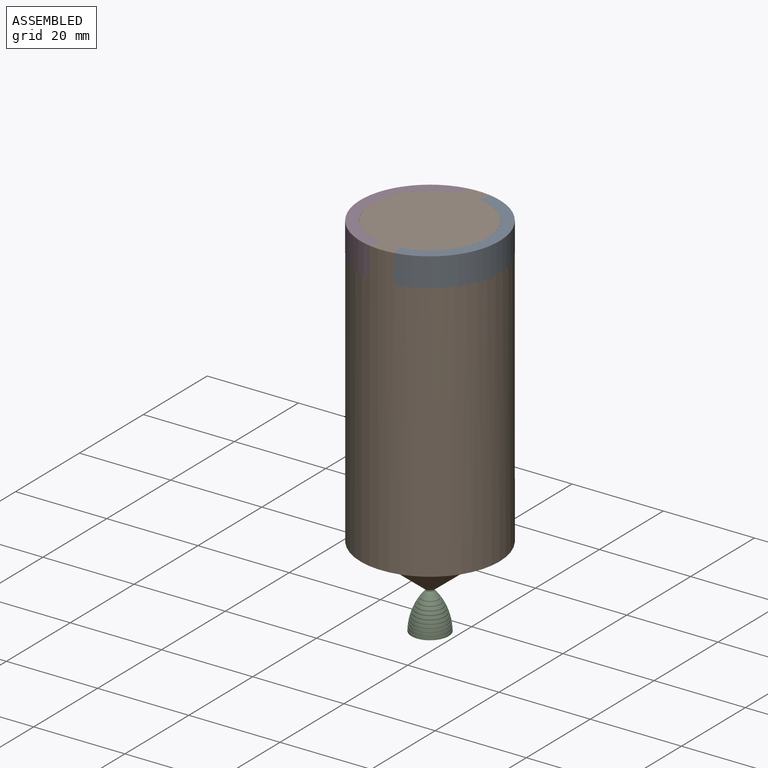
[diagram: assembled view]
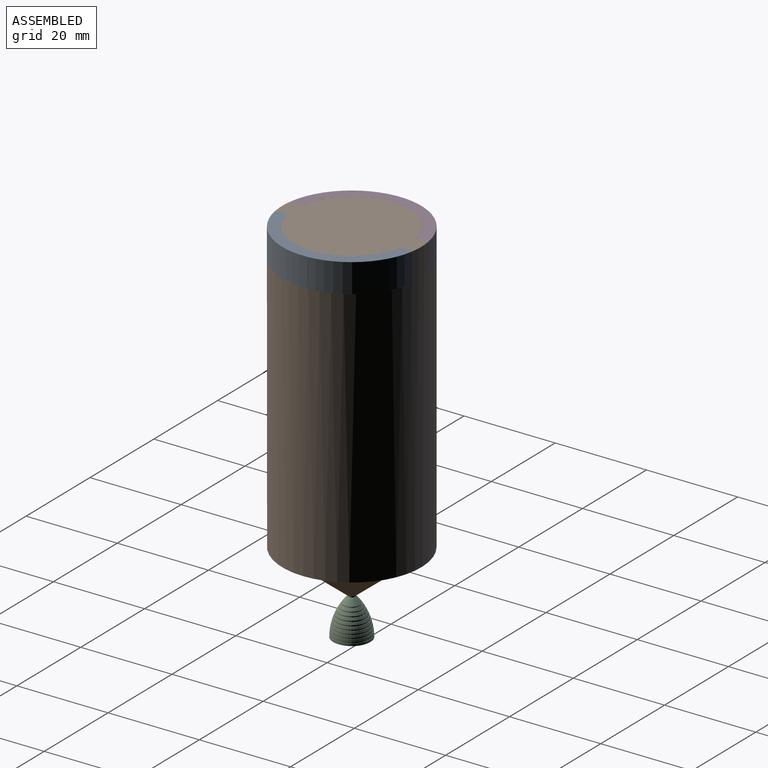
[diagram: assembled view, second angle]
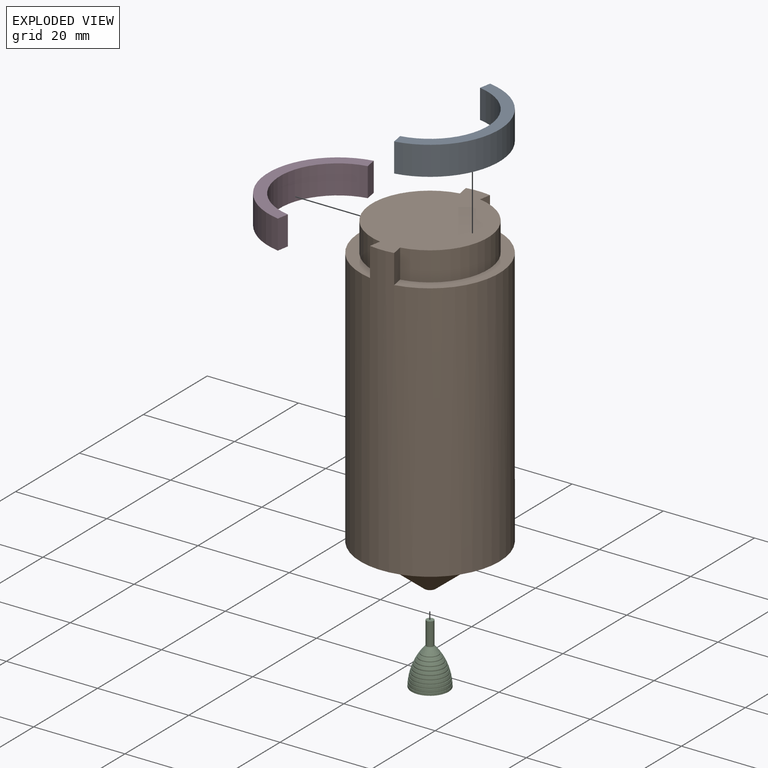
[diagram: exploded view]
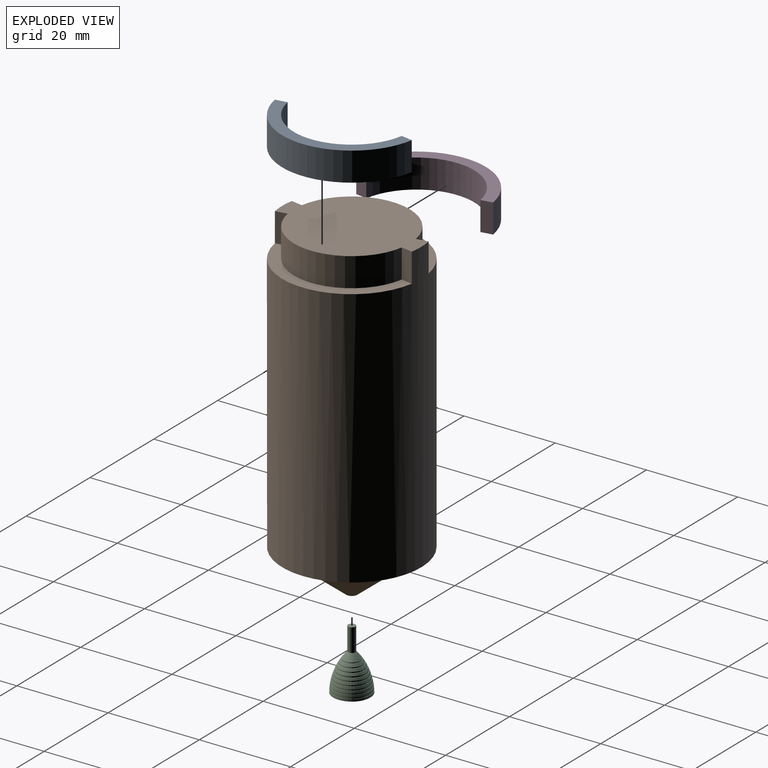
[diagram: exploded view, second angle]
ASSEMBLY  parts=4 mates=2
PART A: 6 faces, bbox 13x30x6.4 mm
  f0: plane 6.35x2.5mm, normal (0.98,-0.17,0), area 16.1mm2, adj f1,f3,f4,f5
  f1: cylinder r=12.7mm len=25.01mm, axis (0,0,-1), area 225.2mm2, adj f0,f2,f4,f5
  f2: plane 6.35x2.5mm, normal (0.98,0.17,0), area 16.1mm2, adj f1,f3,f4,f5
  f3: cylinder r=15.24mm len=30.02mm, axis (0,0,-1), area 270.2mm2, adj f0,f2,f4,f5
  f4: plane 30.02x13.03mm, normal (0,0,1), area 99.1mm2, adj f0,f1,f2,f3
  f5: plane 30.02x13.03mm, normal (0,0,-1), area 99.1mm2, adj f0,f1,f2,f3
PART B: 14 faces, bbox 30.5x30.5x72.7 mm
  f0: plane 30.48x25.4mm, normal (0,0,1), area 531.5mm2, adj f1,f3,f4,f5,f7,f8,f9
  f1: cylinder r=15.24mm len=63.5mm, axis (0,0,-1), area 5540mm2, adj f0,f2,f3,f5,f6,f8,f9,f10
  f2: plane 30.48x30.48mm, normal (0,0,-1), area 223mm2, adj f1,f11
  f3: plane 6.35x2.5mm, normal (0.98,-0.17,0), area 16.1mm2, adj f0,f1,f4,f6
  f4: cylinder r=12.7mm len=25.01mm, axis (0,0,1), area 225.2mm2, adj f0,f3,f5,f6
  f5: plane 6.35x2.5mm, normal (0.98,0.17,0), area 16.1mm2, adj f0,f1,f4,f6
  f6: plane 30.02x13.03mm, normal (0,0,1), area 99.1mm2, adj f1,f3,f4,f5
  f7: cylinder r=12.7mm len=25.01mm, axis (0,0,1), area 225.2mm2, adj f0,f8,f9,f10
  f8: plane 6.35x2.5mm, normal (-0.98,-0.17,0), area 16.1mm2, adj f0,f1,f7,f10
  f9: plane 6.35x2.5mm, normal (-0.98,0.17,0), area 16.1mm2, adj f0,f1,f7,f10
  f10: plane 30.02x13.03mm, normal (0,0,1), area 99.1mm2, adj f1,f7,f8,f9
  f11: cone r=0mm half-angle=51.3deg, axis (0,0,1), area 642.9mm2, adj f2,f12
  f12: cylinder r=1.22mm len=9.18mm, axis (0,0,1), area 70.4mm2, adj f11,f13
  f13: plane 2.44x2.44mm, normal (0,0,-1), area 4.7mm2, adj f12
PART C: 38 faces, bbox 8.1x8.1x13.2 mm
  f0: revolved ~4.76x4.76mm, area 9.6mm2, adj f1,f37
  f1: cylinder r=2.38mm len=4.76mm, axis (0,0,-1), area 2.6mm2, adj f0,f2
  f2: plane 4.96x4.96mm, normal (0,0,1), area 1.6mm2, adj f1,f3
  f3: revolved ~5.56x5.56mm, area 10.4mm2, adj f2,f4
  f4: cylinder r=2.78mm len=5.56mm, axis (0,0,-1), area 3.6mm2, adj f3,f5
  f5: plane 5.76x5.76mm, normal (0,0,1), area 1.8mm2, adj f4,f6
  f6: revolved ~6.22x6.22mm, area 10.6mm2, adj f5,f7
  f7: cylinder r=3.11mm len=6.22mm, axis (0,0,-1), area 4.9mm2, adj f6,f8
  f8: plane 6.42x6.42mm, normal (0,0,1), area 2mm2, adj f7,f9
  f9: revolved ~6.8x6.8mm, area 11.3mm2, adj f8,f10
  f10: plane 6.8x6.8mm, normal (0,0,-1), area 0.4mm2, adj f9,f11
  f11: cylinder r=3.38mm len=6.76mm, axis (0,0,-1), area 5.4mm2, adj f10,f12
  f12: plane 6.97x6.97mm, normal (0,0,1), area 2.2mm2, adj f11,f13
  f13: revolved ~7.27x7.27mm, area 11.9mm2, adj f12,f14
  f14: plane 7.27x7.27mm, normal (0,0,-1), area 0.8mm2, adj f13,f15
  f15: cylinder r=3.6mm len=7.2mm, axis (0,0,-1), area 5.7mm2, adj f14,f16
  f16: plane 7.4x7.4mm, normal (0,0,1), area 2.3mm2, adj f15,f17
  f17: revolved ~7.63x7.63mm, area 12.3mm2, adj f16,f18
  f18: plane 7.63x7.63mm, normal (0,0,-1), area 1.2mm2, adj f17,f19
  f19: cylinder r=3.76mm len=7.53mm, axis (0,0,-1), area 6mm2, adj f18,f20
  f20: plane 7.73x7.73mm, normal (0,0,1), area 2.4mm2, adj f19,f21
  f21: revolved ~7.9x7.9mm, area 12.6mm2, adj f20,f22
  f22: plane 7.9x7.9mm, normal (0,0,-1), area 1.7mm2, adj f21,f23
  f23: cylinder r=3.88mm len=7.76mm, axis (0,0,-1), area 6.2mm2, adj f22,f24
  f24: plane 7.96x7.96mm, normal (0,0,1), area 2.5mm2, adj f23,f25
  f25: revolved ~8.06x8.06mm, area 12.9mm2, adj f24,f26
  f26: plane 8.06x8.06mm, normal (0,0,-1), area 2.1mm2, adj f25,f27
  f27: cylinder r=3.94mm len=7.89mm, axis (0,0,-1), area 6.3mm2, adj f26,f28
  f28: plane 8.09x8.09mm, normal (0,0,1), area 2.6mm2, adj f27,f29
  f29: revolved ~8.13x8.13mm, area 13mm2, adj f28,f30
  f30: plane 8.13x8.13mm, normal (0,0,-1), area 8mm2, adj f29,f31
  f31: revolved ~7.8x7.48mm, area 146.8mm2, adj f30,f32
  f32: plane 1.41x1.41mm, normal (0,0,-1), area 1.6mm2, adj f31
  f33: cone r=0.81mm half-angle=89.8deg, axis (0,0,-1), area 2.1mm2, adj f34
  f34: cylinder r=0.81mm len=5.08mm, axis (0,0,-1), area 25.9mm2, adj f33,f35
  f35: revolved ~3.82x3.82mm, area 15.2mm2, adj f34,f36
  f36: cylinder r=1.91mm len=3.82mm, axis (0,0,-1), area 1.8mm2, adj f35,f37
  f37: plane 4.03x4.03mm, normal (0,0,1), area 1.3mm2, adj f0,f36
PART D: same geometry as A
PLACE A rot(axis=(0,1,0),180deg) t=(-129.93,77.94,80.99)mm
PLACE B t=(-29.88,-44.45,17.49)mm fixed
PLACE C t=(50.72,-89.09,-20.12)mm
PLACE D rot(axis=(1,0,0),180deg) t=(70.16,-52.91,80.99)mm
MATE fastened C.f1 <-> B.f1  axis (0,0,-1) through (-29.88,12.51,12.9)mm
MATE fastened A.f1 <-> B.f1  axis (0,0,-1) through (-29.88,12.51,74.64)mm
